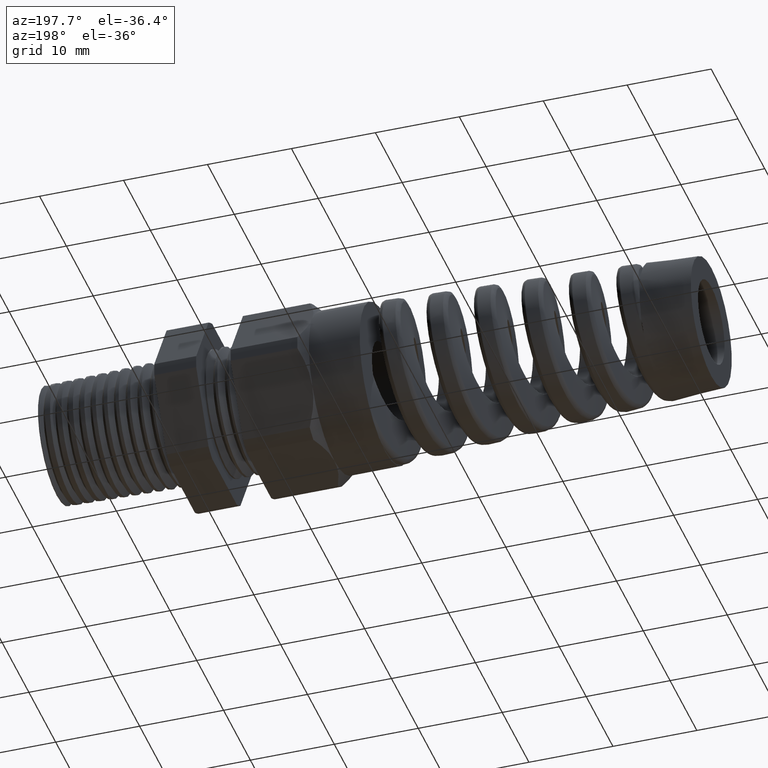
[diagram: clean part render]
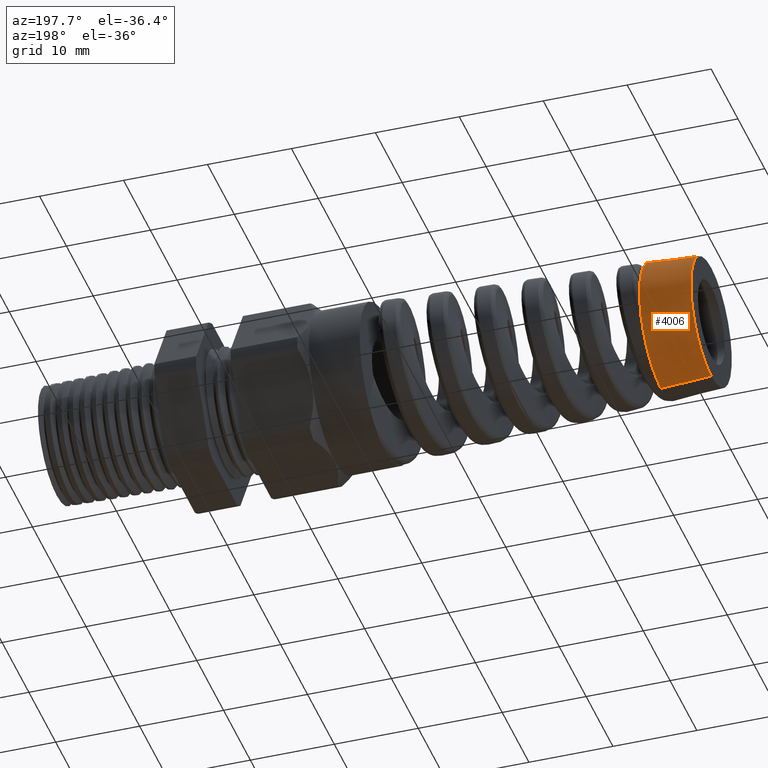
[diagram: same view with one face highlighted and labeled with its STEP entity id]
A machine part, auxiliary view. The second image highlights one B-rep face of the part: STEP entity #4006.
In plain terms, the highlighted conical surface has half-angle 3.5 deg.
Its self-contained STEP definition (entity closure, byte-faithful):
#1639 = CARTESIAN_POINT ( 'NONE',  ( -2.790000472440945100, -3.769408208166195900E-017, -0.3005716068234703400 ) ) ;
#1640 = CARTESIAN_POINT ( 'NONE',  ( -2.790000472440945100, 0.0000000000000000000, 0.3005716068234703400 ) ) ;
#1641 = DIRECTION ( 'NONE',  ( 0.9981347984218669200, -7.476289853398327700E-018, -0.06104853953485701200 ) ) ;
#1642 = VECTOR ( 'NONE', #1641, 39.37007874015748900 ) ;
#1643 = CARTESIAN_POINT ( 'NONE',  ( -2.553780000000000200, -3.857875854222994900E-017, -0.3150194698511438700 ) ) ;
#1644 = LINE ( 'NONE', #1643, #1642 ) ;
#1650 = CARTESIAN_POINT ( 'NONE',  ( -2.553780000000000200, 0.0000000000000000000, 0.3150194698511438700 ) ) ;
#1657 = DIRECTION ( 'NONE',  ( 0.9981347984218669200, 0.0000000000000000000, 0.06104853953485701200 ) ) ;
#1658 = VECTOR ( 'NONE', #1657, 39.37007874015748900 ) ;
#1659 = CARTESIAN_POINT ( 'NONE',  ( -2.553780000000000200, 0.0000000000000000000, 0.3150194698511438700 ) ) ;
#1660 = LINE ( 'NONE', #1659, #1658 ) ;
#1973 = DIRECTION ( 'NONE',  ( 0.0000000000000000000, 0.0000000000000000000, 1.000000000000000000 ) ) ;
#1974 = DIRECTION ( 'NONE',  ( -1.000000000000000000, 0.0000000000000000000, 0.0000000000000000000 ) ) ;
#1975 = CARTESIAN_POINT ( 'NONE',  ( -2.790000472440945100, 0.0000000000000000000, 0.0000000000000000000 ) ) ;
#1976 = AXIS2_PLACEMENT_3D ( 'NONE', #1975, #1974, #1973 ) ;
#1977 = CIRCLE ( 'NONE', #1976, 0.3005716068234703400 ) ;
#3317 = VERTEX_POINT ( 'NONE', #5856 ) ;
#3419 = EDGE_CURVE ( 'NONE', #9189, #3317, #5913, .T. ) ;
#3914 = ORIENTED_EDGE ( 'NONE', *, *, #11244, .F. ) ;
#3915 = EDGE_LOOP ( 'NONE', ( #3914, #4602, #4537, #4527, #4574 ) ) ;
#4006 = ADVANCED_FACE ( 'NONE', ( #6816 ), #6811, .T. ) ;
#4527 = ORIENTED_EDGE ( 'NONE', *, *, #4577, .T. ) ;
#4537 = ORIENTED_EDGE ( 'NONE', *, *, #11239, .T. ) ;
#4574 = ORIENTED_EDGE ( 'NONE', *, *, #3419, .F. ) ;
#4577 = EDGE_CURVE ( 'NONE', #11242, #3317, #7261, .T. ) ;
#4602 = ORIENTED_EDGE ( 'NONE', *, *, #11428, .F. ) ;
#5856 = CARTESIAN_POINT ( 'NONE',  ( -2.553780000000000200, 0.2519907787363809300, -0.1890447402524813600 ) ) ;
#5909 = DIRECTION ( 'NONE',  ( 0.0000000000000000000, 0.0000000000000000000, -1.000000000000000000 ) ) ;
#5910 = DIRECTION ( 'NONE',  ( 1.000000000000000000, 0.0000000000000000000, 0.0000000000000000000 ) ) ;
#5911 = CARTESIAN_POINT ( 'NONE',  ( -2.553780000000000200, 0.0000000000000000000, 0.0000000000000000000 ) ) ;
#5912 = AXIS2_PLACEMENT_3D ( 'NONE', #5911, #5910, #5909 ) ;
#5913 = CIRCLE ( 'NONE', #5912, 0.3150194698511439900 ) ;
#6806 = DIRECTION ( 'NONE',  ( 0.0000000000000000000, 0.0000000000000000000, 1.000000000000000000 ) ) ;
#6807 = DIRECTION ( 'NONE',  ( 1.000000000000000000, 0.0000000000000000000, 0.0000000000000000000 ) ) ;
#6808 = CARTESIAN_POINT ( 'NONE',  ( -2.553780000000000200, 0.0000000000000000000, 0.0000000000000000000 ) ) ;
#6809 = AXIS2_PLACEMENT_3D ( 'NONE', #6808, #6807, #6806 ) ;
#6811 = CONICAL_SURFACE ( 'NONE', #6809, 0.3150194698511438700, 0.06108652381980166800 ) ;
#6816 = FACE_OUTER_BOUND ( 'NONE', #3915, .T. ) ;
#7252 = DIRECTION ( 'NONE',  ( 0.0000000000000000000, 0.0000000000000000000, 1.000000000000000000 ) ) ;
#7253 = DIRECTION ( 'NONE',  ( -1.000000000000000000, 0.0000000000000000000, 0.0000000000000000000 ) ) ;
#7254 = CARTESIAN_POINT ( 'NONE',  ( -2.553780000000000200, 0.0000000000000000000, 0.0000000000000000000 ) ) ;
#7255 = AXIS2_PLACEMENT_3D ( 'NONE', #7254, #7253, #7252 ) ;
#7261 = CIRCLE ( 'NONE', #7255, 0.3150194698511438700 ) ;
#9189 = VERTEX_POINT ( 'NONE', #10204 ) ;
#10204 = CARTESIAN_POINT ( 'NONE',  ( -2.553780000000000200, -3.857875854222994900E-017, -0.3150194698511438700 ) ) ;
#11239 = EDGE_CURVE ( 'NONE', #11246, #11242, #1660, .T. ) ;
#11242 = VERTEX_POINT ( 'NONE', #1650 ) ;
#11244 = EDGE_CURVE ( 'NONE', #11250, #9189, #1644, .T. ) ;
#11246 = VERTEX_POINT ( 'NONE', #1640 ) ;
#11250 = VERTEX_POINT ( 'NONE', #1639 ) ;
#11428 = EDGE_CURVE ( 'NONE', #11246, #11250, #1977, .T. ) ;